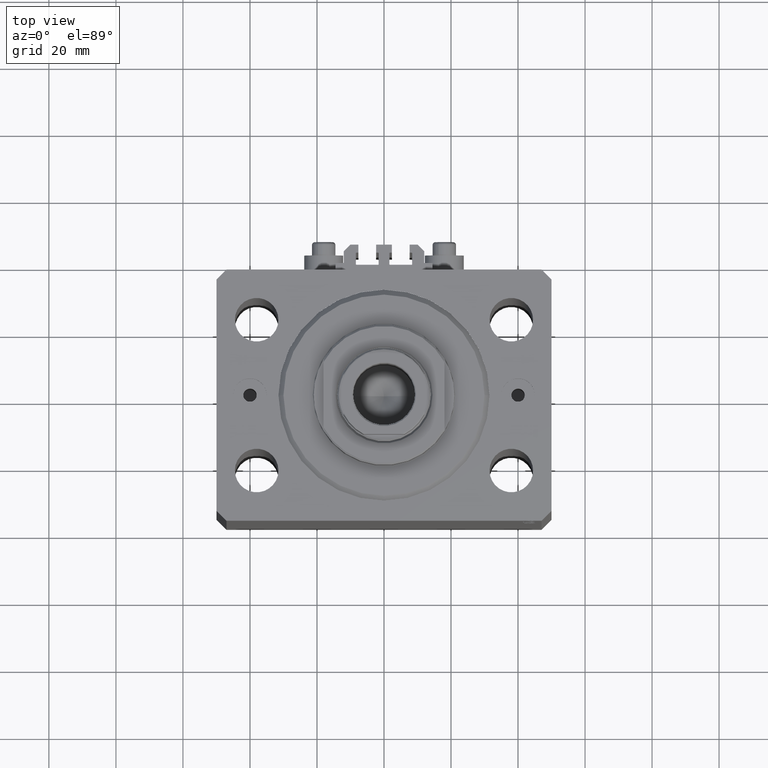
[diagram: clean part render]
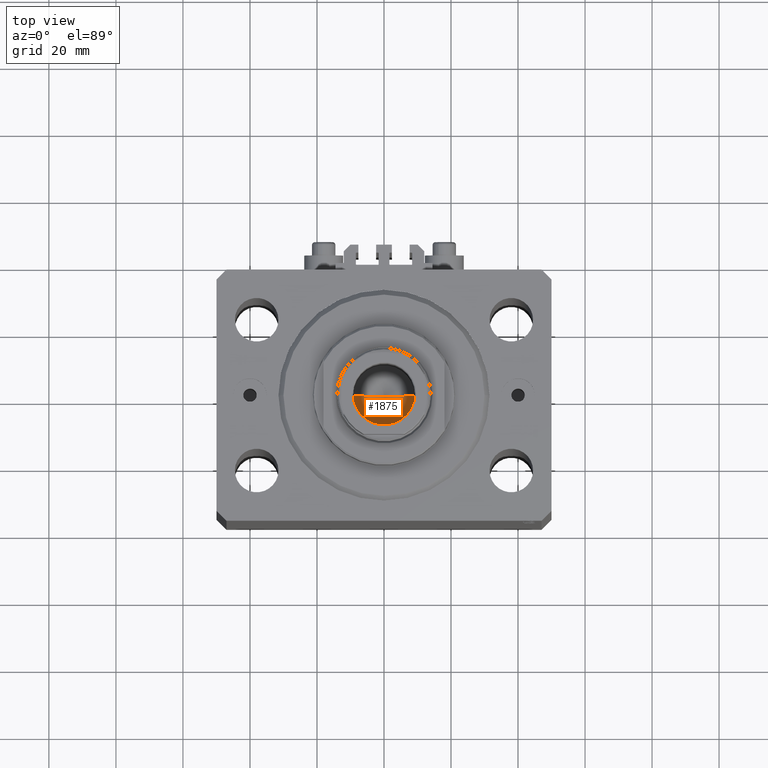
[diagram: same view with one face highlighted and labeled with its STEP entity id]
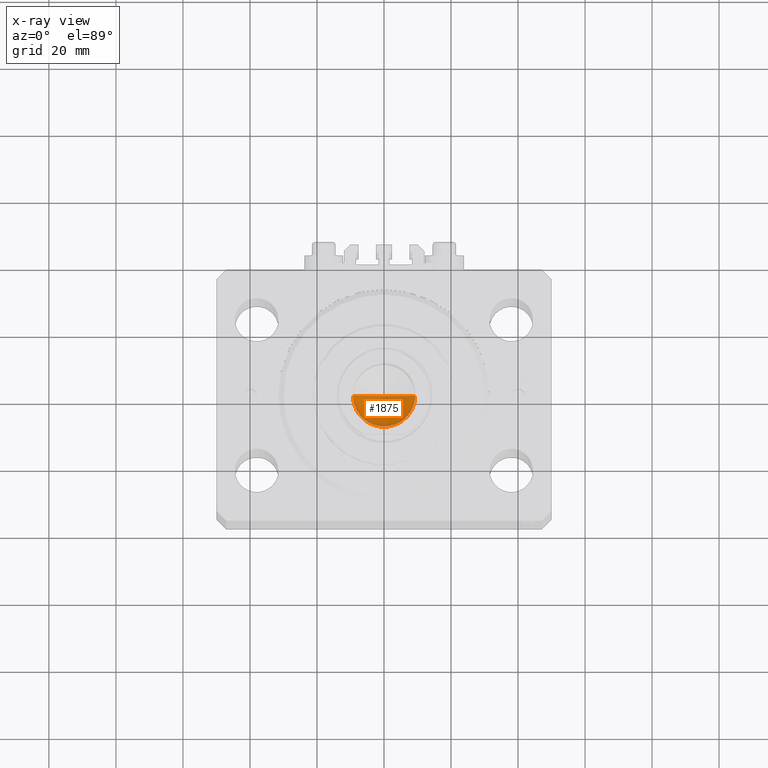
[diagram: x-ray of the same camera — body ghosted, the highlighted face saturated]
A machine part, top view. The second image highlights one B-rep face of the part: STEP entity #1875.
The next image is the same camera in x-ray: the body ghosted, the highlighted face saturated — about 8% of this face is hidden behind the body in this view.
In plain terms, the highlighted conical surface has half-angle 59 deg.
Its self-contained STEP definition (entity closure, byte-faithful):
#1875 = ADVANCED_FACE ( 'NONE', ( #6956 ), #36994, .F. ) ;
#5902 = ORIENTED_EDGE ( 'NONE', *, *, #21280, .T. ) ;
#6491 = CARTESIAN_POINT ( 'NONE',  ( 0.000000000000000000, 0.000000000000000000, 128.0000000000000000 ) ) ;
#6956 = FACE_OUTER_BOUND ( 'NONE', #22693, .T. ) ;
#8449 = CARTESIAN_POINT ( 'NONE',  ( -9.249999999999994671, 1.132798289211300909E-15, 128.0000000000000000 ) ) ;
#14044 = DIRECTION ( 'NONE',  ( -0.000000000000000000, -0.000000000000000000, 1.000000000000000000 ) ) ;
#14089 = AXIS2_PLACEMENT_3D ( 'NONE', #6491, #36558, #21526 ) ;
#15579 = EDGE_CURVE ( 'NONE', #33617, #20167, #20196, .T. ) ;
#15891 = CARTESIAN_POINT ( 'NONE',  ( 9.249999999999994671, 0.000000000000000000, 128.0000000000000000 ) ) ;
#19647 = CARTESIAN_POINT ( 'NONE',  ( -1.046994375366439223E-14, 0.000000000000000000, 122.4420392739950643 ) ) ;
#19902 = LINE ( 'NONE', #8449, #37571 ) ;
#20167 = VERTEX_POINT ( 'NONE', #47244 ) ;
#20196 = LINE ( 'NONE', #15891, #32103 ) ;
#20508 = CIRCLE ( 'NONE', #24328, 9.249999999999994671 ) ;
#21280 = EDGE_CURVE ( 'NONE', #33617, #38548, #19902, .T. ) ;
#21526 = DIRECTION ( 'NONE',  ( 1.000000000000000000, 0.000000000000000000, 0.000000000000000000 ) ) ;
#22693 = EDGE_LOOP ( 'NONE', ( #33257, #5902, #31241 ) ) ;
#24328 = AXIS2_PLACEMENT_3D ( 'NONE', #35783, #14044, #28608 ) ;
#26890 = DIRECTION ( 'NONE',  ( 0.8571673007021117785, 0.000000000000000000, 0.5150380749100550437 ) ) ;
#28608 = DIRECTION ( 'NONE',  ( 1.000000000000000000, 0.000000000000000000, 0.000000000000000000 ) ) ;
#31241 = ORIENTED_EDGE ( 'NONE', *, *, #34908, .T. ) ;
#31344 = DIRECTION ( 'NONE',  ( -0.8571673007021117785, 1.049727191138617956E-16, 0.5150380749100550437 ) ) ;
#32103 = VECTOR ( 'NONE', #26890, 1000.000000000000000 ) ;
#33257 = ORIENTED_EDGE ( 'NONE', *, *, #15579, .F. ) ;
#33617 = VERTEX_POINT ( 'NONE', #19647 ) ;
#34908 = EDGE_CURVE ( 'NONE', #38548, #20167, #20508, .T. ) ;
#35783 = CARTESIAN_POINT ( 'NONE',  ( 0.000000000000000000, 0.000000000000000000, 128.0000000000000000 ) ) ;
#36558 = DIRECTION ( 'NONE',  ( -0.000000000000000000, -0.000000000000000000, 1.000000000000000000 ) ) ;
#36994 = CONICAL_SURFACE ( 'NONE', #14089, 9.249999999999994671, 1.029744258676653423 ) ;
#37571 = VECTOR ( 'NONE', #31344, 1000.000000000000000 ) ;
#38527 = CARTESIAN_POINT ( 'NONE',  ( -9.249999999999994671, 1.132798289211300909E-15, 128.0000000000000000 ) ) ;
#38548 = VERTEX_POINT ( 'NONE', #38527 ) ;
#47244 = CARTESIAN_POINT ( 'NONE',  ( 9.249999999999994671, 0.000000000000000000, 128.0000000000000000 ) ) ;